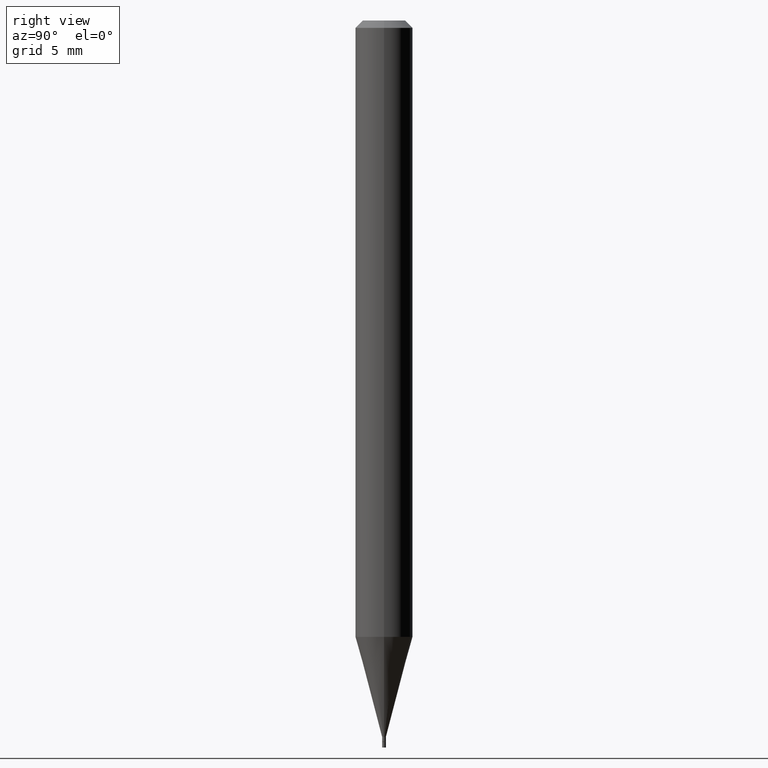
[diagram: clean part render]
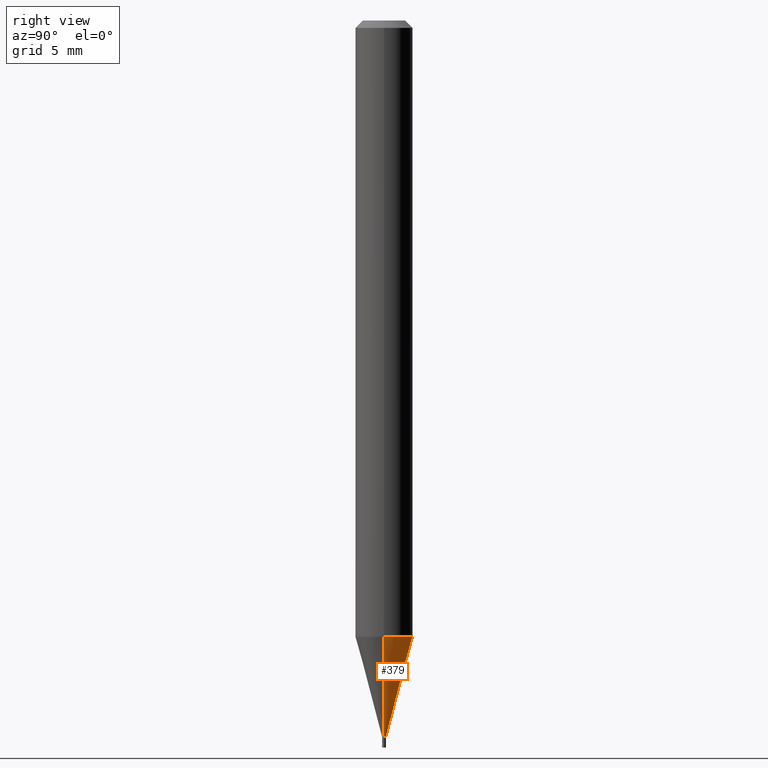
[diagram: same view with one face highlighted and labeled with its STEP entity id]
A machine part, right view. The second image highlights one B-rep face of the part: STEP entity #379.
In plain terms, the highlighted conical surface has half-angle 15 deg.
Its self-contained STEP definition (entity closure, byte-faithful):
#11 = CARTESIAN_POINT ( 'NONE',  ( 0.05904999999999999832, -4.841162332867759001E-15, -1.268464000502953493 ) ) ;
#42 = CARTESIAN_POINT ( 'NONE',  ( 3.604865567197509774E-29, -5.146792641588681136E-15, -1.474099999999999966 ) ) ;
#46 = CARTESIAN_POINT ( 'NONE',  ( 3.101989144998780290E-29, -4.428818386750384870E-15, -1.268464000502953493 ) ) ;
#68 = CIRCLE ( 'NONE', #104, 0.003949999999999506857 ) ;
#70 = EDGE_CURVE ( 'NONE', #190, #198, #68, .T. ) ;
#79 = DIRECTION ( 'NONE',  ( 1.000000000000000000, -6.982962677686381095E-15, 0.000000000000000000 ) ) ;
#80 = EDGE_CURVE ( 'NONE', #248, #283, #450, .T. ) ;
#104 = AXIS2_PLACEMENT_3D ( 'NONE', #42, #257, #79 ) ;
#128 = ORIENTED_EDGE ( 'NONE', *, *, #70, .T. ) ;
#138 = ORIENTED_EDGE ( 'NONE', *, *, #80, .F. ) ;
#153 = DIRECTION ( 'NONE',  ( -0.2588190451025212391, 5.211531920934549464E-15, 0.9659258262890679791 ) ) ;
#154 = CONICAL_SURFACE ( 'NONE', #268, 0.003949999999999506857, 0.2617993877991499629 ) ;
#158 = DIRECTION ( 'NONE',  ( -2.445468806185136597E-29, 3.491481338843145583E-15, 1.000000000000000000 ) ) ;
#183 = DIRECTION ( 'NONE',  ( 0.2588190451025212391, 1.565188264969622362E-15, 0.9659258262890679791 ) ) ;
#185 = LINE ( 'NONE', #402, #420 ) ;
#190 = VERTEX_POINT ( 'NONE', #330 ) ;
#198 = VERTEX_POINT ( 'NONE', #301 ) ;
#210 = DIRECTION ( 'NONE',  ( 1.000000000000000000, -6.982962677686273021E-15, 0.000000000000000000 ) ) ;
#225 = EDGE_CURVE ( 'NONE', #190, #248, #185, .T. ) ;
#248 = VERTEX_POINT ( 'NONE', #11 ) ;
#257 = DIRECTION ( 'NONE',  ( -2.445468806185136597E-29, 3.491481338843145583E-15, 1.000000000000000000 ) ) ;
#268 = AXIS2_PLACEMENT_3D ( 'NONE', #269, #158, #458 ) ;
#269 = CARTESIAN_POINT ( 'NONE',  ( 3.604865567197509774E-29, -5.146792641588681136E-15, -1.474099999999999966 ) ) ;
#283 = VERTEX_POINT ( 'NONE', #294 ) ;
#294 = CARTESIAN_POINT ( 'NONE',  ( -0.05904999999999999832, -4.009242901284044588E-15, -1.268464000502953493 ) ) ;
#301 = CARTESIAN_POINT ( 'NONE',  ( -0.003949999999999506857, -4.563984552405103218E-15, -1.474099999999999966 ) ) ;
#310 = FACE_OUTER_BOUND ( 'NONE', #388, .T. ) ;
#328 = AXIS2_PLACEMENT_3D ( 'NONE', #46, #331, #210 ) ;
#330 = CARTESIAN_POINT ( 'NONE',  ( 0.003949999999999506857, -5.174375344165538526E-15, -1.474099999999999966 ) ) ;
#331 = DIRECTION ( 'NONE',  ( -2.445468806185136597E-29, 3.491481338843145583E-15, 1.000000000000000000 ) ) ;
#347 = LINE ( 'NONE', #421, #365 ) ;
#365 = VECTOR ( 'NONE', #153, 39.37007874015748854 ) ;
#372 = EDGE_CURVE ( 'NONE', #198, #283, #347, .T. ) ;
#379 = ADVANCED_FACE ( 'NONE', ( #310 ), #154, .T. ) ;
#388 = EDGE_LOOP ( 'NONE', ( #128, #413, #138, #426 ) ) ;
#402 = CARTESIAN_POINT ( 'NONE',  ( 0.003949999999999506857, -5.174375344165538526E-15, -1.474099999999999966 ) ) ;
#413 = ORIENTED_EDGE ( 'NONE', *, *, #372, .T. ) ;
#420 = VECTOR ( 'NONE', #183, 39.37007874015748854 ) ;
#421 = CARTESIAN_POINT ( 'NONE',  ( -0.003949999999999506857, -5.118726203526160270E-15, -1.474099999999999966 ) ) ;
#426 = ORIENTED_EDGE ( 'NONE', *, *, #225, .F. ) ;
#450 = CIRCLE ( 'NONE', #328, 0.05904999999999999832 ) ;
#458 = DIRECTION ( 'NONE',  ( 1.000000000000000000, -6.982962677686381095E-15, 0.000000000000000000 ) ) ;